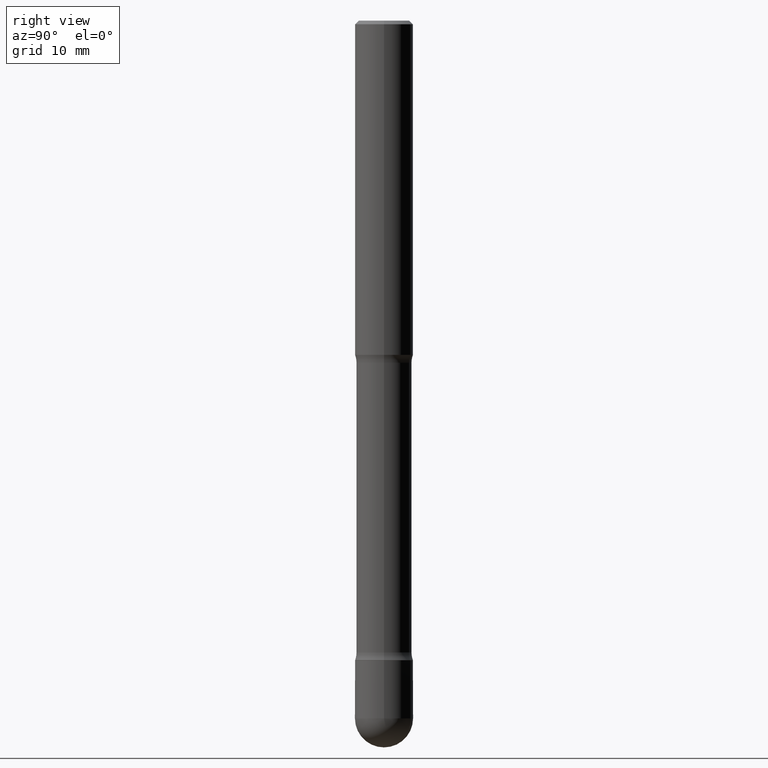
[diagram: clean part render]
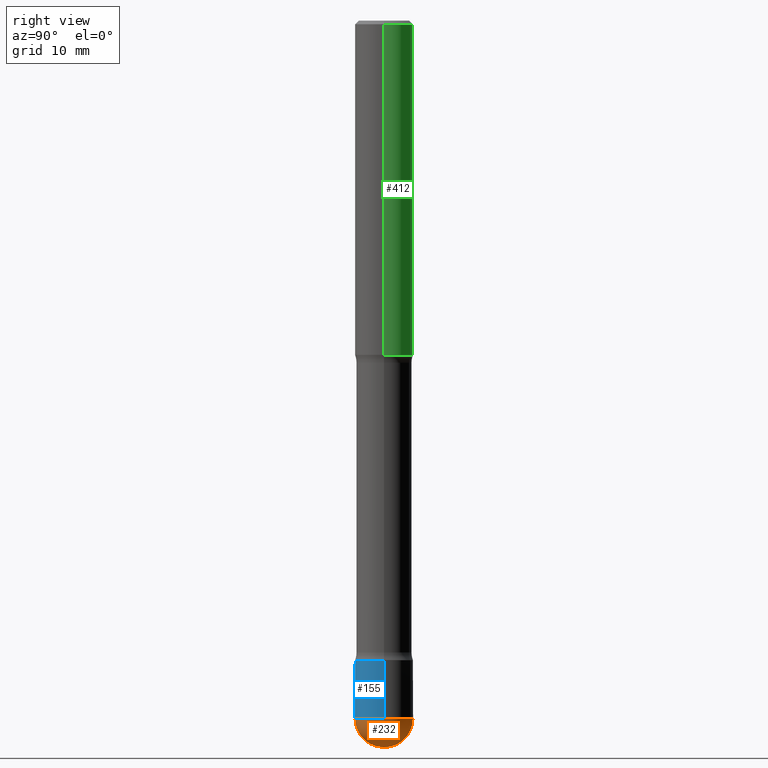
[diagram: same view with three faces highlighted in distinct colors, each labeled with its STEP entity id]
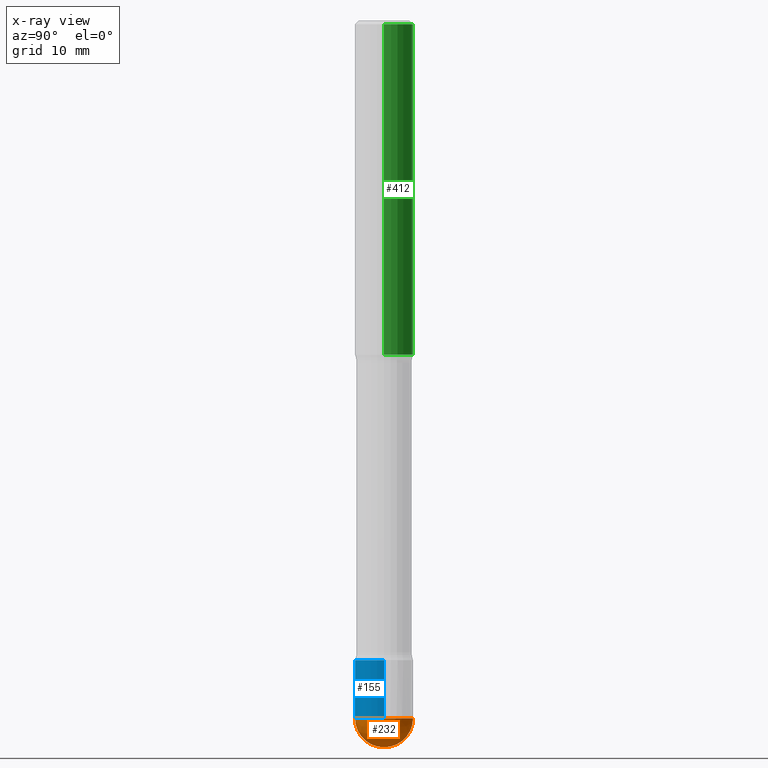
[diagram: x-ray of the same camera — body ghosted, the three highlighted faces saturated]
A machine part, right view with three faces highlighted in distinct colors.
The next image is the same camera in x-ray (body ghosted, the three faces saturated) — at least one of them is partly hidden behind the body in this view.
Their STEP definitions:

[orange] entity #232 — the highlighted spherical surface has radius 4.0005 mm.
#4 = CIRCLE ( 'NONE', #323, 0.1574999999999993072 ) ;
#22 = DIRECTION ( 'NONE',  ( 1.000000000000000000, -6.982962677686267499E-15, 0.000000000000000000 ) ) ;
#27 = FACE_OUTER_BOUND ( 'NONE', #357, .T. ) ;
#31 = DIRECTION ( 'NONE',  ( -6.982962677686266711E-15, -1.000000000000000000, 3.469013325287958815E-15 ) ) ;
#34 = CIRCLE ( 'NONE', #143, 0.1574999999999993072 ) ;
#38 = DIRECTION ( 'NONE',  ( -6.982962677686266711E-15, -1.000000000000000000, 0.000000000000000000 ) ) ;
#58 = CARTESIAN_POINT ( 'NONE',  ( 9.229180483922148002E-29, -1.321534190724423940E-14, -3.779500000000000082 ) ) ;
#75 = DIRECTION ( 'NONE',  ( -1.000000000000000000, 6.982962677686265922E-15, -4.883557194083112340E-29 ) ) ;
#77 = ORIENTED_EDGE ( 'NONE', *, *, #508, .F. ) ;
#96 = CARTESIAN_POINT ( 'NONE',  ( 0.1574999999999993072, -1.374613660509239965E-14, -3.779500000000000082 ) ) ;
#116 = EDGE_CURVE ( 'NONE', #169, #136, #512, .T. ) ;
#136 = VERTEX_POINT ( 'NONE', #167 ) ;
#143 = AXIS2_PLACEMENT_3D ( 'NONE', #272, #226, #22 ) ;
#149 = SPHERICAL_SURFACE ( 'NONE', #402, 0.1574999999999997513 ) ;
#167 = CARTESIAN_POINT ( 'NONE',  ( -1.099816621735491436E-15, -0.1575000000000127409, -3.779499999999999194 ) ) ;
#169 = VERTEX_POINT ( 'NONE', #449 ) ;
#190 = CARTESIAN_POINT ( 'NONE',  ( 1.119104808822246547E-15, 0.1574999999999863454, -3.779500000000000526 ) ) ;
#195 = CARTESIAN_POINT ( 'NONE',  ( 9.242649352976724072E-29, -1.319605372015766849E-14, -3.779500000000000082 ) ) ;
#199 = EDGE_CURVE ( 'NONE', #352, #307, #4, .T. ) ;
#222 = DIRECTION ( 'NONE',  ( -2.445468806185136597E-29, 3.491481338843145583E-15, 1.000000000000000000 ) ) ;
#226 = DIRECTION ( 'NONE',  ( -2.445468806185136597E-29, 3.491481338843145583E-15, 1.000000000000000000 ) ) ;
#232 = ADVANCED_FACE ( 'NONE', ( #27 ), #149, .T. ) ;
#234 = AXIS2_PLACEMENT_3D ( 'NONE', #550, #479, #524 ) ;
#272 = CARTESIAN_POINT ( 'NONE',  ( 9.242649352976724072E-29, -1.319605372015766849E-14, -3.779500000000000082 ) ) ;
#283 = DIRECTION ( 'NONE',  ( 1.000000000000000000, -6.982962677686267499E-15, 0.000000000000000000 ) ) ;
#307 = VERTEX_POINT ( 'NONE', #190 ) ;
#323 = AXIS2_PLACEMENT_3D ( 'NONE', #195, #222, #283 ) ;
#335 = EDGE_CURVE ( 'NONE', #169, #307, #471, .T. ) ;
#345 = AXIS2_PLACEMENT_3D ( 'NONE', #392, #75, #38 ) ;
#352 = VERTEX_POINT ( 'NONE', #96 ) ;
#357 = EDGE_LOOP ( 'NONE', ( #433, #400, #556, #77 ) ) ;
#392 = CARTESIAN_POINT ( 'NONE',  ( 9.229180483922148002E-29, -1.321534190724423940E-14, -3.779500000000000082 ) ) ;
#400 = ORIENTED_EDGE ( 'NONE', *, *, #335, .T. ) ;
#402 = AXIS2_PLACEMENT_3D ( 'NONE', #58, #541, #31 ) ;
#433 = ORIENTED_EDGE ( 'NONE', *, *, #116, .F. ) ;
#449 = CARTESIAN_POINT ( 'NONE',  ( 9.607607386369019003E-29, -1.377489431165531899E-14, -3.936999999999999389 ) ) ;
#471 = CIRCLE ( 'NONE', #234, 0.1574999999999997513 ) ;
#479 = DIRECTION ( 'NONE',  ( 1.000000000000000000, -7.105427357601001070E-15, 4.926315508542082329E-29 ) ) ;
#508 = EDGE_CURVE ( 'NONE', #136, #352, #34, .T. ) ;
#512 = CIRCLE ( 'NONE', #345, 0.1574999999999997513 ) ;
#524 = DIRECTION ( 'NONE',  ( 7.105427357601000281E-15, 1.000000000000000000, 0.000000000000000000 ) ) ;
#541 = DIRECTION ( 'NONE',  ( 1.000000000000000000, -6.982962677686266711E-15, 4.883557194083112901E-29 ) ) ;
#550 = CARTESIAN_POINT ( 'NONE',  ( 9.229180483922148002E-29, -1.321534190724423940E-14, -3.779500000000000082 ) ) ;
#556 = ORIENTED_EDGE ( 'NONE', *, *, #199, .F. ) ;

[blue] entity #155 — the highlighted cylindrical surface (edge-blend (fillet) strip) has radius 4.0005 mm, axis along (-0, 0, 1).
#6 = VERTEX_POINT ( 'NONE', #119 ) ;
#18 = AXIS2_PLACEMENT_3D ( 'NONE', #411, #501, #154 ) ;
#22 = DIRECTION ( 'NONE',  ( 1.000000000000000000, -6.982962677686267499E-15, 0.000000000000000000 ) ) ;
#24 = EDGE_CURVE ( 'NONE', #352, #527, #78, .T. ) ;
#33 = EDGE_CURVE ( 'NONE', #218, #6, #298, .T. ) ;
#34 = CIRCLE ( 'NONE', #143, 0.1574999999999993072 ) ;
#43 = EDGE_LOOP ( 'NONE', ( #396, #202, #207, #180, #244 ) ) ;
#44 = CYLINDRICAL_SURFACE ( 'NONE', #380, 0.1574999999999993350 ) ;
#65 = DIRECTION ( 'NONE',  ( -2.445468806185136597E-29, 3.491481338843145583E-15, 1.000000000000000000 ) ) ;
#78 = LINE ( 'NONE', #379, #521 ) ;
#82 = FACE_OUTER_BOUND ( 'NONE', #43, .T. ) ;
#96 = CARTESIAN_POINT ( 'NONE',  ( 0.1574999999999993072, -1.374613660509239965E-14, -3.779500000000000082 ) ) ;
#100 = CARTESIAN_POINT ( 'NONE',  ( 0.1574999999999993350, -1.319640286829154569E-14, -3.464599999999999902 ) ) ;
#119 = CARTESIAN_POINT ( 'NONE',  ( -0.1574999999999993350, -1.152721517453466324E-14, -3.464599999999999902 ) ) ;
#127 = DIRECTION ( 'NONE',  ( -2.445468806185136877E-29, 3.491481338843145188E-15, 1.000000000000000000 ) ) ;
#136 = VERTEX_POINT ( 'NONE', #167 ) ;
#143 = AXIS2_PLACEMENT_3D ( 'NONE', #272, #226, #22 ) ;
#154 = DIRECTION ( 'NONE',  ( 1.000000000000000000, -6.982962677686267499E-15, 0.000000000000000000 ) ) ;
#155 = ADVANCED_FACE ( 'NONE', ( #82 ), #44, .T. ) ;
#167 = CARTESIAN_POINT ( 'NONE',  ( -1.099816621735491436E-15, -0.1575000000000127409, -3.779499999999999194 ) ) ;
#175 = CARTESIAN_POINT ( 'NONE',  ( -0.1574999999999993350, 1.119104808822153067E-15, -7.747322767151444755E-30 ) ) ;
#180 = ORIENTED_EDGE ( 'NONE', *, *, #24, .T. ) ;
#187 = CIRCLE ( 'NONE', #358, 0.1574999999999993350 ) ;
#202 = ORIENTED_EDGE ( 'NONE', *, *, #329, .T. ) ;
#207 = ORIENTED_EDGE ( 'NONE', *, *, #508, .T. ) ;
#208 = DIRECTION ( 'NONE',  ( -2.445468806185136877E-29, 3.491481338843145188E-15, 1.000000000000000000 ) ) ;
#218 = VERTEX_POINT ( 'NONE', #280 ) ;
#226 = DIRECTION ( 'NONE',  ( -2.445468806185136597E-29, 3.491481338843145583E-15, 1.000000000000000000 ) ) ;
#237 = DIRECTION ( 'NONE',  ( 1.000000000000000000, -6.982962677686266711E-15, 0.000000000000000000 ) ) ;
#244 = ORIENTED_EDGE ( 'NONE', *, *, #309, .F. ) ;
#272 = CARTESIAN_POINT ( 'NONE',  ( 9.242649352976724072E-29, -1.319605372015766849E-14, -3.779500000000000082 ) ) ;
#273 = DIRECTION ( 'NONE',  ( -2.445468806185136597E-29, 3.491481338843145583E-15, 1.000000000000000000 ) ) ;
#277 = DIRECTION ( 'NONE',  ( 1.000000000000000000, -6.982962677686266711E-15, 4.876176775795936353E-29 ) ) ;
#280 = CARTESIAN_POINT ( 'NONE',  ( -0.1574999999999993072, -1.152721517453466482E-14, -3.779500000000000082 ) ) ;
#298 = LINE ( 'NONE', #175, #369 ) ;
#309 = EDGE_CURVE ( 'NONE', #6, #527, #187, .T. ) ;
#329 = EDGE_CURVE ( 'NONE', #218, #136, #504, .T. ) ;
#352 = VERTEX_POINT ( 'NONE', #96 ) ;
#358 = AXIS2_PLACEMENT_3D ( 'NONE', #366, #65, #237 ) ;
#366 = CARTESIAN_POINT ( 'NONE',  ( 8.472571225909024784E-29, -1.209658624655596216E-14, -3.464599999999999902 ) ) ;
#369 = VECTOR ( 'NONE', #127, 39.37007874015748143 ) ;
#379 = CARTESIAN_POINT ( 'NONE',  ( 0.1574999999999993350, -1.099816621735582353E-15, 7.679978421878567204E-30 ) ) ;
#380 = AXIS2_PLACEMENT_3D ( 'NONE', #547, #273, #277 ) ;
#396 = ORIENTED_EDGE ( 'NONE', *, *, #33, .F. ) ;
#411 = CARTESIAN_POINT ( 'NONE',  ( 9.242649352976724072E-29, -1.319605372015766849E-14, -3.779500000000000082 ) ) ;
#501 = DIRECTION ( 'NONE',  ( -2.445468806185136597E-29, 3.491481338843145583E-15, 1.000000000000000000 ) ) ;
#504 = CIRCLE ( 'NONE', #18, 0.1574999999999993072 ) ;
#508 = EDGE_CURVE ( 'NONE', #136, #352, #34, .T. ) ;
#521 = VECTOR ( 'NONE', #208, 39.37007874015748143 ) ;
#527 = VERTEX_POINT ( 'NONE', #100 ) ;
#547 = CARTESIAN_POINT ( 'NONE',  ( 0.000000000000000000, 0.000000000000000000, 0.000000000000000000 ) ) ;

[green] entity #412 — the highlighted cylindrical surface (edge-blend (fillet) strip) has radius 4.0005 mm, axis along (0, -0, -1).
#11 = DIRECTION ( 'NONE',  ( 2.445468806185136877E-29, -3.491481338843145188E-15, -1.000000000000000000 ) ) ;
#20 = DIRECTION ( 'NONE',  ( -1.000000000000000000, 6.982962677686266711E-15, 0.000000000000000000 ) ) ;
#23 = LINE ( 'NONE', #135, #426 ) ;
#51 = VERTEX_POINT ( 'NONE', #436 ) ;
#81 = CIRCLE ( 'NONE', #163, 0.1575000000000000011 ) ;
#99 = CARTESIAN_POINT ( 'NONE',  ( 4.890937612370220610E-31, -6.982962677686216421E-17, -0.01999999999999978531 ) ) ;
#102 = CARTESIAN_POINT ( 'NONE',  ( 8.472571225909024784E-29, -1.209658624655596216E-14, -3.464599999999999902 ) ) ;
#109 = AXIS2_PLACEMENT_3D ( 'NONE', #102, #264, #20 ) ;
#117 = EDGE_LOOP ( 'NONE', ( #255, #209, #251, #477 ) ) ;
#135 = CARTESIAN_POINT ( 'NONE',  ( -0.1574999999999998901, -1.099676962482037704E-14, -3.464599999999999902 ) ) ;
#147 = CARTESIAN_POINT ( 'NONE',  ( -0.1575000000000000011, -5.223256082909358770E-15, -1.811000000000002608 ) ) ;
#163 = AXIS2_PLACEMENT_3D ( 'NONE', #316, #538, #488 ) ;
#204 = VECTOR ( 'NONE', #11, 39.37007874015748143 ) ;
#209 = ORIENTED_EDGE ( 'NONE', *, *, #458, .T. ) ;
#219 = FACE_OUTER_BOUND ( 'NONE', #117, .T. ) ;
#228 = LINE ( 'NONE', #394, #204 ) ;
#231 = DIRECTION ( 'NONE',  ( -1.000000000000000000, 6.982962677686266711E-15, 0.000000000000000000 ) ) ;
#251 = ORIENTED_EDGE ( 'NONE', *, *, #496, .F. ) ;
#255 = ORIENTED_EDGE ( 'NONE', *, *, #502, .T. ) ;
#264 = DIRECTION ( 'NONE',  ( 2.445468806185136597E-29, -3.491481338843145583E-15, -1.000000000000000000 ) ) ;
#279 = EDGE_CURVE ( 'NONE', #507, #388, #23, .T. ) ;
#287 = CIRCLE ( 'NONE', #328, 0.1574999999999997791 ) ;
#290 = VERTEX_POINT ( 'NONE', #401 ) ;
#314 = DIRECTION ( 'NONE',  ( 2.445468806185136877E-29, -3.491481338843145188E-15, -1.000000000000000000 ) ) ;
#316 = CARTESIAN_POINT ( 'NONE',  ( 4.428744008001288403E-29, -6.323072704644945461E-15, -1.811000000000002608 ) ) ;
#328 = AXIS2_PLACEMENT_3D ( 'NONE', #99, #448, #231 ) ;
#388 = VERTEX_POINT ( 'NONE', #147 ) ;
#394 = CARTESIAN_POINT ( 'NONE',  ( 0.1574999999999998901, -1.317711468120497794E-14, -3.464599999999999902 ) ) ;
#401 = CARTESIAN_POINT ( 'NONE',  ( 0.1574999999999997791, -1.150358061425876908E-15, -0.01999999999999978531 ) ) ;
#412 = ADVANCED_FACE ( 'NONE', ( #219 ), #434, .T. ) ;
#426 = VECTOR ( 'NONE', #314, 39.37007874015748143 ) ;
#434 = CYLINDRICAL_SURFACE ( 'NONE', #109, 0.1574999999999998901 ) ;
#436 = CARTESIAN_POINT ( 'NONE',  ( 0.1575000000000000011, -4.276979600359918976E-15, -1.811000000000002608 ) ) ;
#448 = DIRECTION ( 'NONE',  ( 2.445468806185136597E-29, -3.491481338843145583E-15, -1.000000000000000000 ) ) ;
#458 = EDGE_CURVE ( 'NONE', #290, #51, #228, .T. ) ;
#477 = ORIENTED_EDGE ( 'NONE', *, *, #279, .F. ) ;
#488 = DIRECTION ( 'NONE',  ( -1.000000000000000000, 6.982962677686268288E-15, 0.000000000000000000 ) ) ;
#496 = EDGE_CURVE ( 'NONE', #388, #51, #81, .T. ) ;
#502 = EDGE_CURVE ( 'NONE', #507, #290, #287, .T. ) ;
#507 = VERTEX_POINT ( 'NONE', #525 ) ;
#525 = CARTESIAN_POINT ( 'NONE',  ( -0.1574999999999997791, 1.029986994958723393E-15, -0.01999999999999978531 ) ) ;
#538 = DIRECTION ( 'NONE',  ( 2.445468806185136597E-29, -3.491481338843145583E-15, -1.000000000000000000 ) ) ;